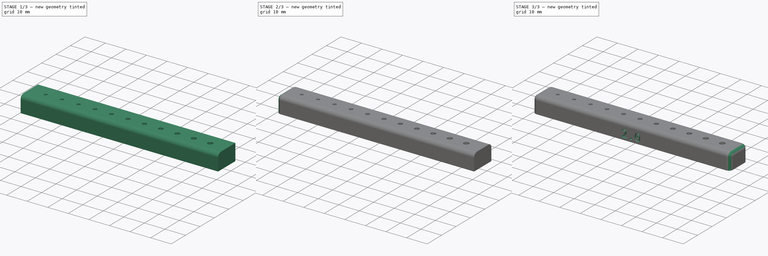
[diagram: build sequence overview — one tinted view per stage of 3, left to right]
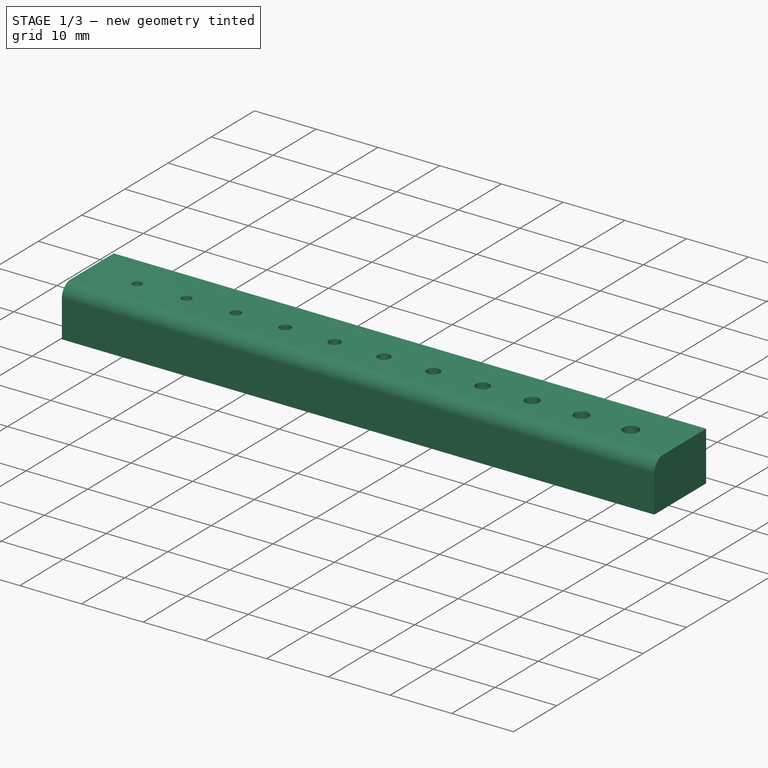
[diagram: stage 1 of 3 — iso view after this stage's code; geometry added in this stage tinted green]
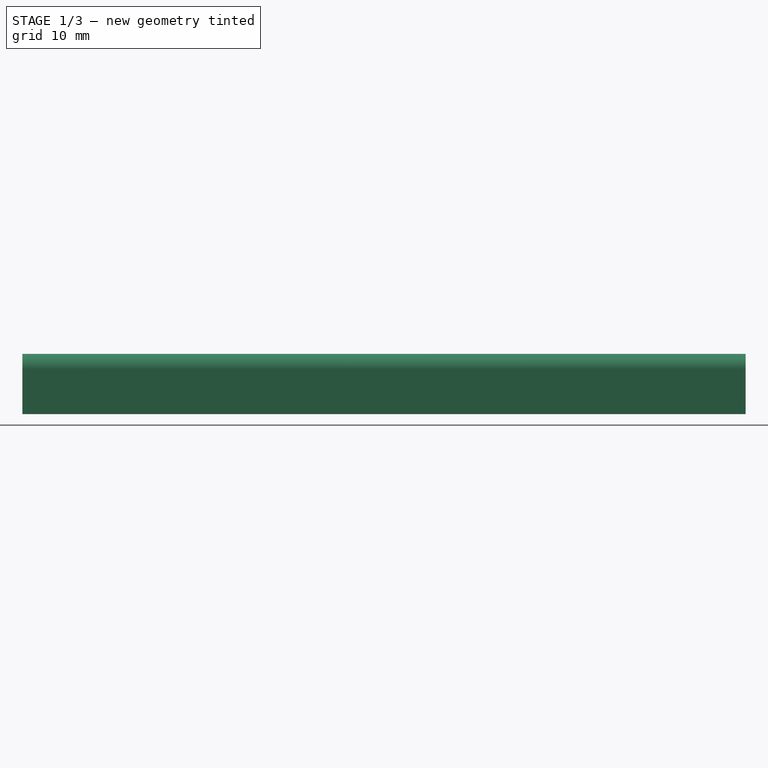
[diagram: stage 1 of 3 — front view after this stage's code; geometry added in this stage tinted green]
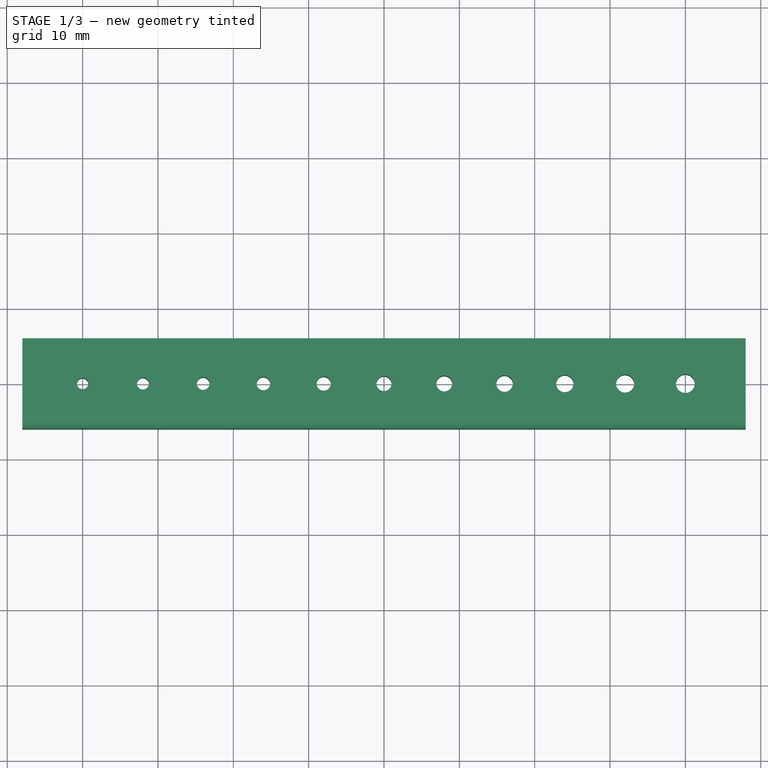
[diagram: stage 1 of 3 — top view after this stage's code; geometry added in this stage tinted green]
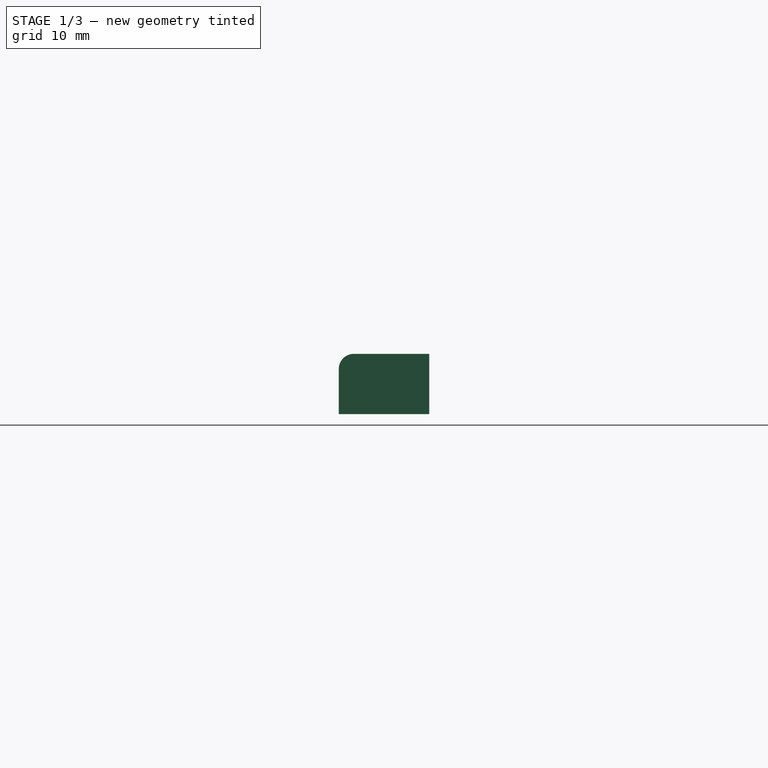
[diagram: stage 1 of 3 — right view after this stage's code; geometry added in this stage tinted green]
FCSTD DOCUMENT  (FreeCAD 0.21R33675 (Git))
Label: m2-target
License: All rights reserved
LicenseURL: http://en.wikipedia.org/wiki/All_rights_reserved
objects: PartDesign::Fillet×4, Sketcher::SketchObject×1, PartDesign::Pad×1, Part::Part2DObjectPython×1, PartDesign::Pocket×1, PartDesign::Body×1
note: 15 computed .brp shape members not serialized (recipe doc carries the construction recipe); baked Part::Feature solids carry a one-line shape summary decoded from their .brp

FEATURE [Sketcher::SketchObject] Sketch  label="body-sk"
  FullyConstrained = true
  MapMode = 5
  Support = -> [XY_Plane]
  sketch-geometry (16):
    g0: LineSegment StartX=-48 StartY=6 StartZ=0 EndX=48 EndY=6 EndZ=0
    g1: LineSegment StartX=48 StartY=6 StartZ=0 EndX=48 EndY=-6 EndZ=0
    g2: LineSegment StartX=48 StartY=-6 StartZ=0 EndX=-48 EndY=-6 EndZ=0
    g3: LineSegment StartX=-48 StartY=-6 StartZ=0 EndX=-48 EndY=6 EndZ=0
    g4: Circle CenterX=-8 CenterY=0 CenterZ=0 NormalX=0 NormalY=0 NormalZ=1 AngleXU=0 Radius=0.95
    g5: Circle CenterX=0 CenterY=0 CenterZ=0 NormalX=0 NormalY=0 NormalZ=1 AngleXU=0 Radius=1
    g6: Circle CenterX=8 CenterY=0 CenterZ=0 NormalX=0 NormalY=0 NormalZ=1 AngleXU=0 Radius=1.05
    g7: Circle CenterX=16 CenterY=0 CenterZ=0 NormalX=0 NormalY=0 NormalZ=1 AngleXU=0 Radius=1.1
    g8: Circle CenterX=24 CenterY=0 CenterZ=0 NormalX=0 NormalY=0 NormalZ=1 AngleXU=0 Radius=1.15
    g9: Circle CenterX=32 CenterY=0 CenterZ=0 NormalX=0 NormalY=0 NormalZ=1 AngleXU=0 Radius=1.2
    g10: Circle CenterX=40 CenterY=0 CenterZ=0 NormalX=0 NormalY=0 NormalZ=1 AngleXU=0 Radius=1.25
    g11: Circle CenterX=-16 CenterY=0 CenterZ=0 NormalX=0 NormalY=0 NormalZ=1 AngleXU=0 Radius=0.9
    g12: Circle CenterX=-24 CenterY=0 CenterZ=0 NormalX=0 NormalY=0 NormalZ=1 AngleXU=0 Radius=0.85
    g13: Circle CenterX=-32 CenterY=0 CenterZ=0 NormalX=0 NormalY=0 NormalZ=1 AngleXU=0 Radius=0.8
    g14: Circle CenterX=-40 CenterY=0 CenterZ=0 NormalX=0 NormalY=0 NormalZ=1 AngleXU=0 Radius=0.75
    g15: GeomPoint X=48 Y=0 Z=0
  constraints (45):
    c: Coincident(g0,g1)
    c: Coincident(g1,g2)
    c: Coincident(g2,g3)
    c: Coincident(g3,g0)
    c: Horizontal(g0)
    c: Horizontal(g2)
    c: Vertical(g1)
    c: Vertical(g3)
    c: DistanceY(g3,g3) = 12
    c: PointOnObject(g4,g-1)
    c: Coincident(g5,g-1)
    c: PointOnObject(g6,g-1)
    c: Diameter(g5) = 2
    c: Diameter(g6) = 2.1
    c: PointOnObject(g7,g-1)
    c: PointOnObject(g8,g-1)
    c: PointOnObject(g9,g-1)
    c: PointOnObject(g10,g-1)
    c: Diameter(g7) = 2.2
    c: Diameter(g8) = 2.3
    c: Diameter(g9) = 2.4
    c: Diameter(g10) = 2.5
    c: DistanceX(g5,g6) = 8
    c: DistanceX(g6,g7) = 8
    c: DistanceX(g7,g8) = 8
    c: DistanceX(g8,g9) = 8
    c: DistanceX(g9,g10) = 8
    c: DistanceX(g10,g0) = 8
    c: Diameter(g4) = 1.9
    c: PointOnObject(g11,g-1)
    c: PointOnObject(g12,g-1)
    c: PointOnObject(g13,g-1)
    c: PointOnObject(g14,g-1)
    c: Diameter(g11) = 1.8
    c: Diameter(g12) = 1.7
    c: Diameter(g13) = 1.6
    c: Diameter(g14) = 1.5
    c: DistanceX(g4,g5) = 8
    c: DistanceX(g11,g4) = 8
    c: DistanceX(g12,g11) = 8
    c: DistanceX(g13,g12) = 8
    c: PointOnObject(g15,g-1)
    c: Symmetric(g0,g1,g15)
    c: DistanceX(g14,g13) = 8
    c: DistanceX(g0,g14) = 8
FEATURE [PartDesign::Pad] Pad  label="body-pad"
  Direction = (0,0,1)
  Length = 8
  Length2 = 10
  Profile = -> Sketch
  ReferenceAxis = -> Sketch [N_Axis]
  Type = 0
FEATURE [PartDesign::Fillet] Fillet  label="Fillet1"
  Base = -> Pad [Edge10]
  BaseFeature = -> Pad
  Radius = 2
  SupportTransform = false
  UseAllEdges = false
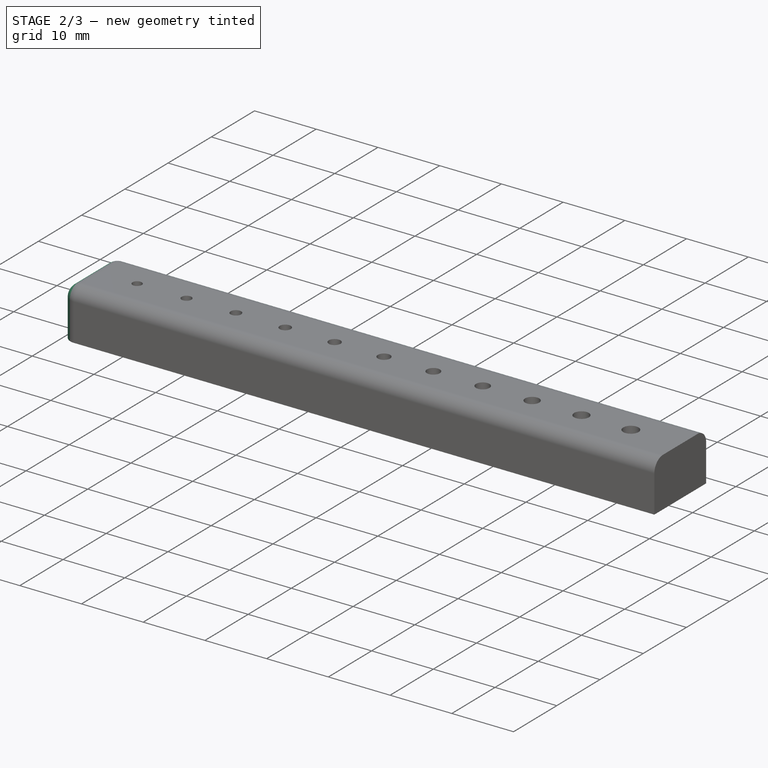
[diagram: stage 2 of 3 — iso view after this stage's code; geometry added in this stage tinted green]
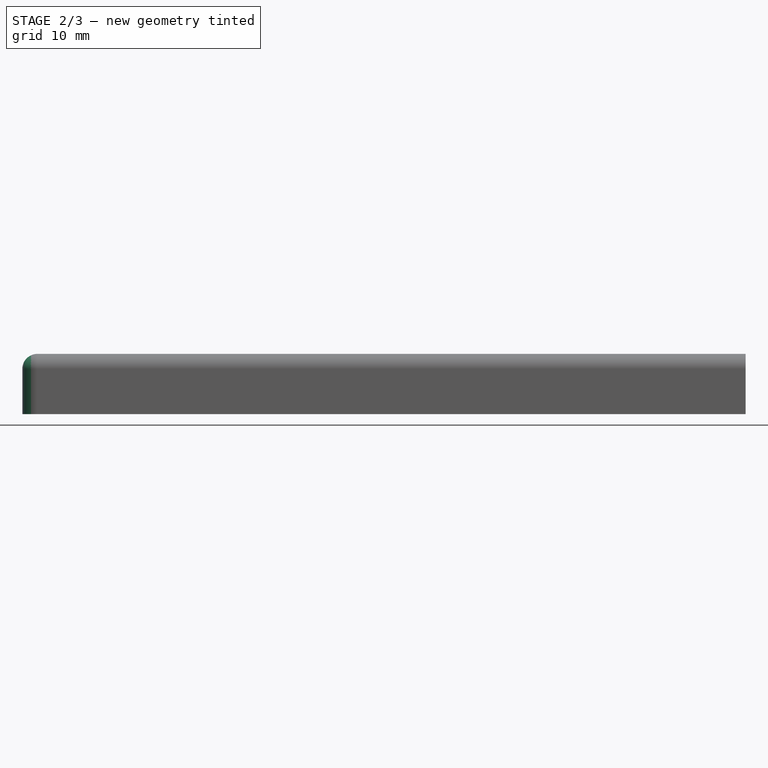
[diagram: stage 2 of 3 — front view after this stage's code; geometry added in this stage tinted green]
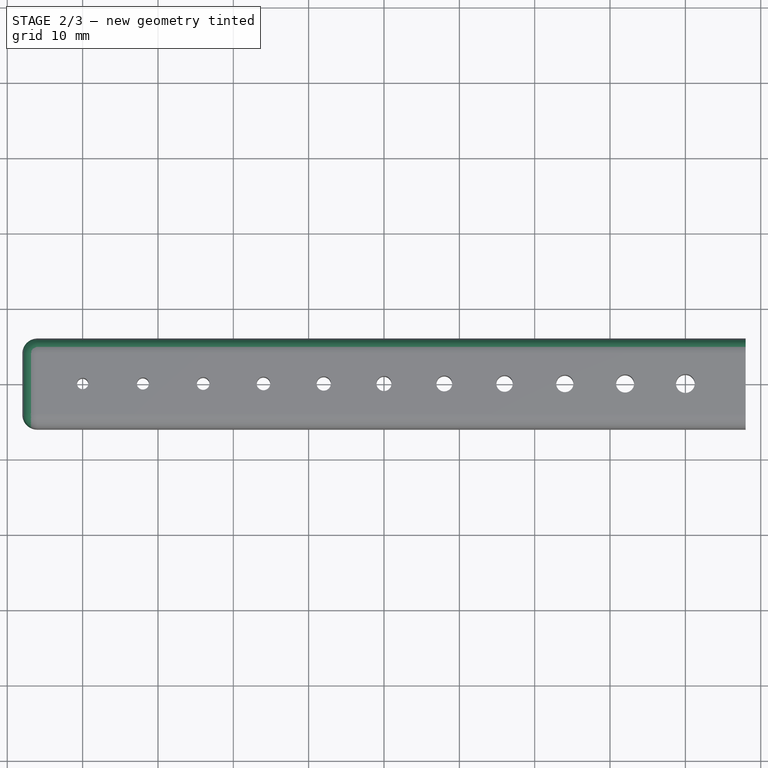
[diagram: stage 2 of 3 — top view after this stage's code; geometry added in this stage tinted green]
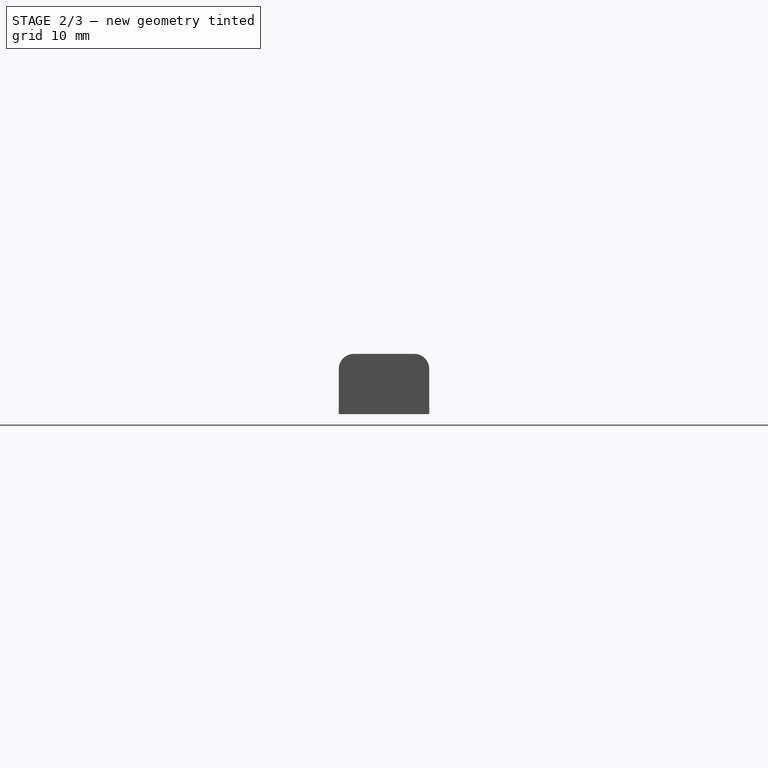
[diagram: stage 2 of 3 — right view after this stage's code; geometry added in this stage tinted green]
FEATURE [PartDesign::Fillet] Fillet001
  Base = -> Fillet [Edge24]
  BaseFeature = -> Fillet
  Radius = 2
  SupportTransform = false
  UseAllEdges = false
FEATURE [PartDesign::Fillet] Fillet002
  Base = -> Fillet001 [Edge9]
  BaseFeature = -> Fillet001
  Radius = 2
  SupportTransform = false
  UseAllEdges = false
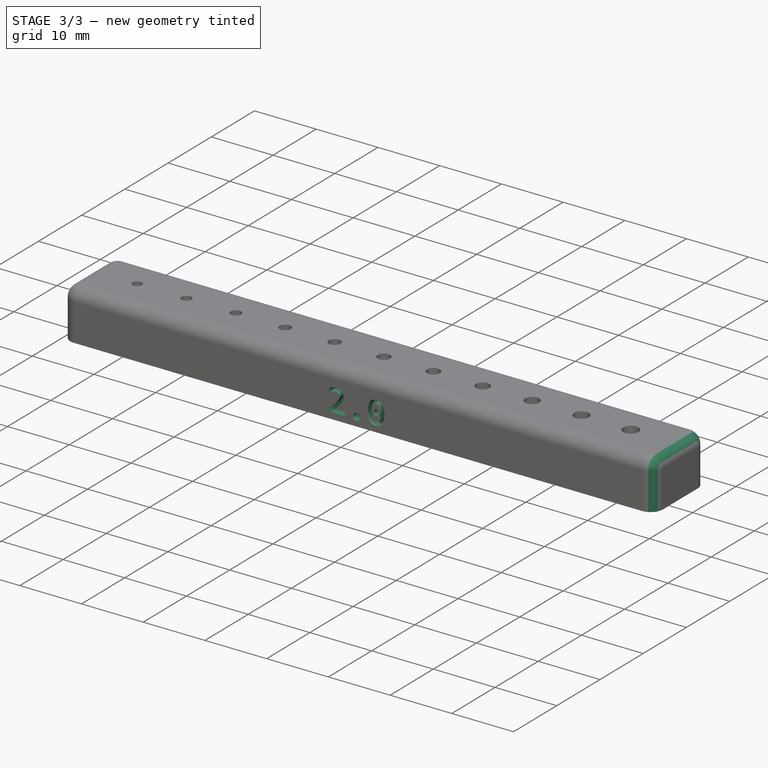
[diagram: stage 3 of 3 — iso view after this stage's code; geometry added in this stage tinted green]
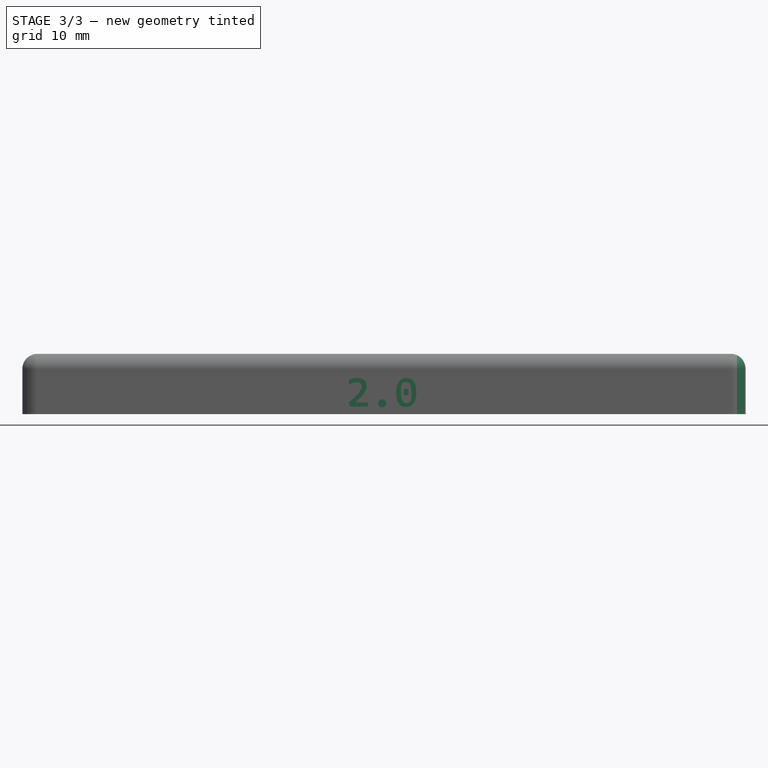
[diagram: stage 3 of 3 — front view after this stage's code; geometry added in this stage tinted green]
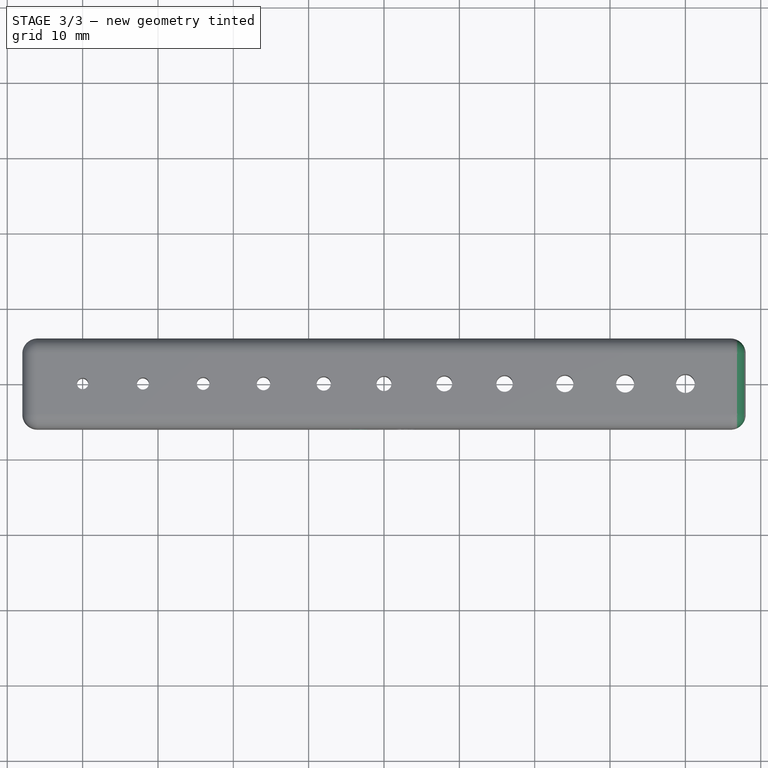
[diagram: stage 3 of 3 — top view after this stage's code; geometry added in this stage tinted green]
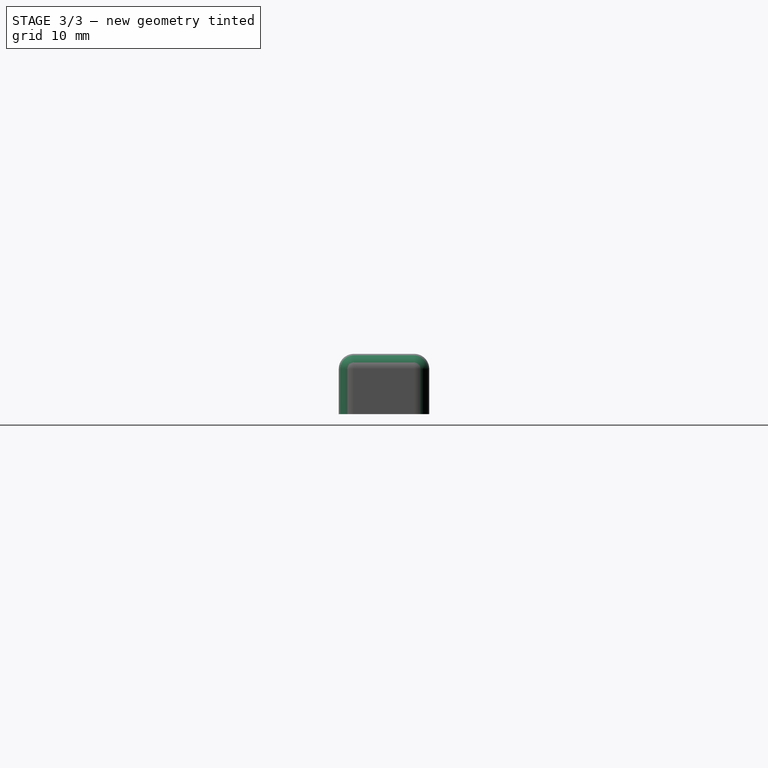
[diagram: stage 3 of 3 — right view after this stage's code; geometry added in this stage tinted green]
FEATURE [PartDesign::Fillet] Fillet003
  Base = -> Fillet002 [Edge3]
  BaseFeature = -> Fillet002
  Radius = 2
  SupportTransform = false
  UseAllEdges = false
FEATURE [Part::Part2DObjectPython] ShapeString  label="text-2.0"  # Draft 2D object (typed FeaturePython)
  AttachmentOffset = pos=(-5,1,0) rot=(0,0,1;0rad)
  FontFile = <userpath>/Library/Fonts/MonaspaceArgon-SemiBold.otf
  MakeFace = true
  MapMode = 5
  Placement = pos=(-5,-6,1) rot=(1,0,0;1.5708rad)
  Size = 4
  String = 2
  Support = -> [Fillet003]
  Tracking = 0
FEATURE [PartDesign::Pocket] Pocket
  BaseFeature = -> Fillet003
  Direction = (0,1,-2e-16)
  Length = 1
  Length2 = 5
  Profile = -> ShapeString
  ReferenceAxis = -> ShapeString [N_Axis]
  Type = 0
FEATURE [PartDesign::Body] Body  label="main"
  Group = -> [Sketch,Pad,Fillet,Fillet001,Fillet002,Fillet003,ShapeString,Pocket]
  Origin = -> Origin
  Tip = -> Pocket
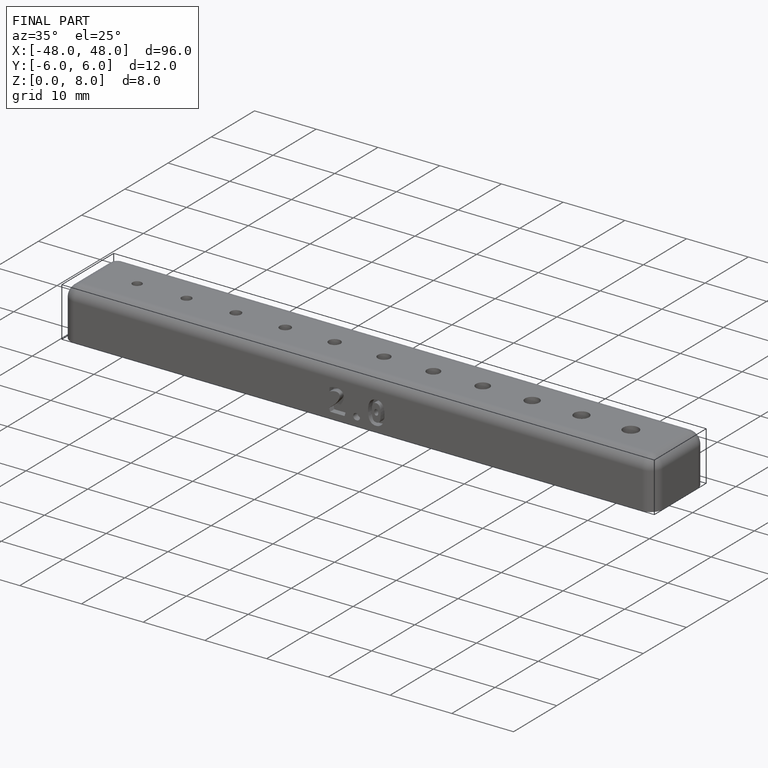
[diagram: finished part — iso view with bounding-box wireframe]
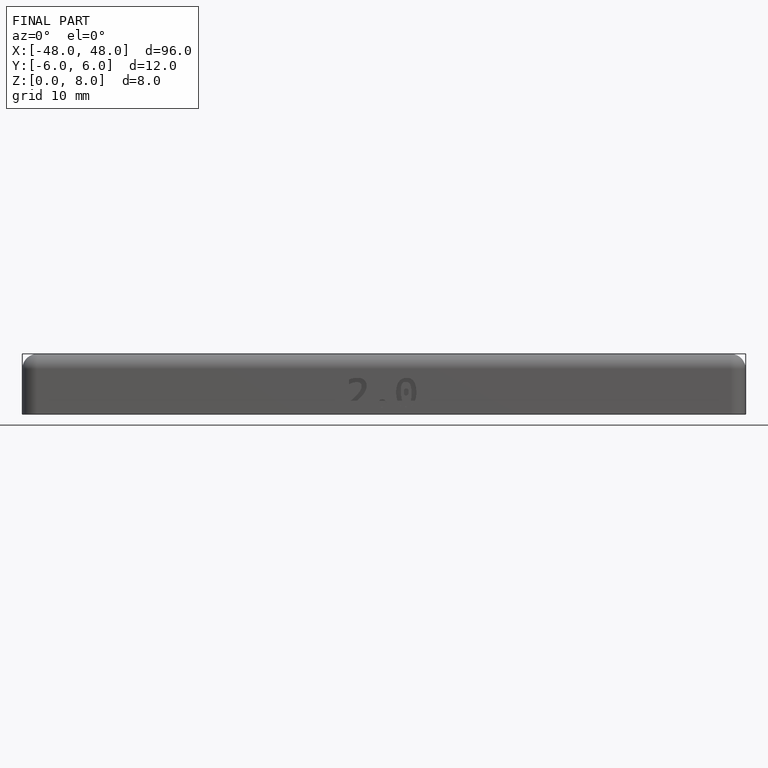
[diagram: finished part — front view with bounding-box wireframe]
